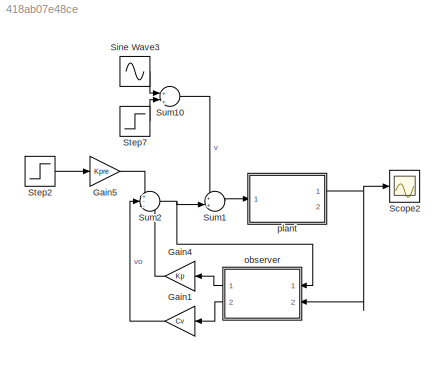
MODEL slx_418ab07e48ce
KIND model
CONFIG AbsTol = auto
CONFIG EnableMultiTasking = off
CONFIG FixedStep = auto
CONFIG MaxStep = auto
CONFIG MinStep = auto
CONFIG RelTol = 1e-3
CONFIG SampleTimeConstraint = Unconstrained
CONFIG Solver = VariableStepAuto
CONFIG SolverName = VariableStepAuto
CONFIG StartTime = 0.0
CONFIG StopTime = 10.0
BLOCK [Gain] Gain1
  Gain = Cv
  Multiplication = Matrix(K*u)
  OutDataTypeStr = Inherit: Inherit via internal rule
  ParamDataTypeStr = Inherit: Inherit via internal rule
  SaturateOnIntegerOverflow = off
BLOCK [Gain] Gain4
  Gain = Kp
  Multiplication = Matrix(K*u)
  OutDataTypeStr = Inherit: Inherit via internal rule
  ParamDataTypeStr = Inherit: Inherit via internal rule
  SaturateOnIntegerOverflow = off
BLOCK [Gain] Gain5
  Gain = Kpre
  Multiplication = Matrix(K*u)
  OutDataTypeStr = Inherit: Inherit via internal rule
  ParamDataTypeStr = Inherit: Inherit via internal rule
  SaturateOnIntegerOverflow = off
BLOCK [Scope] Scope2
  Floating = off
  NumInputPorts = 1
  Ports = [1]
  ScopeSpecificationString = Simulink.scopes.TimeScopeBlockCfg('CurrentConfiguration', extmgr.ConfigurationSet(extmgr.Configuration('Core','General UI',true),extmgr.Configuration('Core','Source UI',true),extmgr.Configuration('Sources','WiredSimulink',true),extmgr.Configuration('Visuals','Time Domain',true,'SerializedDisplays',{struct('MinYLimReal','-2.86993','MaxYLimReal','14.38316','YLabelReal','','MinYLimMag','0.00000','Max...<+1456ch>
BLOCK [Sin] Sine Wave3
  Amplitude = 2
  Frequency = 2*ref
  Ports = [0, 1]
  SampleTime = 0
BLOCK [Step] Step2
  After = ref
  SampleTime = 0
BLOCK [Step] Step7
  After = 2
  SampleTime = 0
  Time = 4
BLOCK [Sum] Sum1
  IconShape = round
  InputSameDT = off
  Inputs = ++|
  OutDataTypeStr = Inherit: Inherit via internal rule
  Ports = [2, 1]
  SaturateOnIntegerOverflow = off
BLOCK [Sum] Sum10
  IconShape = round
  InputSameDT = off
  Inputs = +|+
  OutDataTypeStr = Inherit: Inherit via internal rule
  Ports = [2, 1]
  SaturateOnIntegerOverflow = off
BLOCK [Sum] Sum2
  IconShape = round
  InputSameDT = off
  Inputs = +--
  OutDataTypeStr = Inherit: Inherit via internal rule
  Ports = [3, 1]
  SaturateOnIntegerOverflow = off
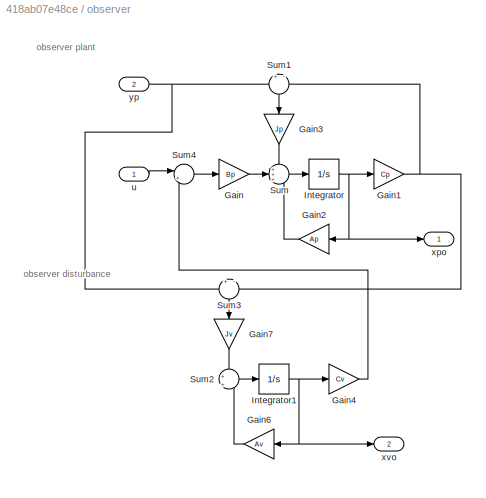
BLOCK [SubSystem] observer
  Ports = [2, 2]
  RequestExecContextInheritance = off
BLOCK [Gain] observer/Gain
  Gain = Bp
  Multiplication = Matrix(K*u)
  OutDataTypeStr = Inherit: Inherit via internal rule
  ParamDataTypeStr = Inherit: Inherit via internal rule
  SaturateOnIntegerOverflow = off
BLOCK [Gain] observer/Gain1
  Gain = Cp
  Multiplication = Matrix(K*u)
  OutDataTypeStr = Inherit: Inherit via internal rule
  ParamDataTypeStr = Inherit: Inherit via internal rule
  SaturateOnIntegerOverflow = off
BLOCK [Gain] observer/Gain2
  Gain = Ap
  Multiplication = Matrix(K*u)
  OutDataTypeStr = Inherit: Inherit via internal rule
  ParamDataTypeStr = Inherit: Inherit via internal rule
  SaturateOnIntegerOverflow = off
BLOCK [Gain] observer/Gain3
  Gain = Jp
  Multiplication = Matrix(K*u)
  OutDataTypeStr = Inherit: Inherit via internal rule
  ParamDataTypeStr = Inherit: Inherit via internal rule
  SaturateOnIntegerOverflow = off
BLOCK [Gain] observer/Gain4
  Gain = Cv
  Multiplication = Matrix(K*u)
  OutDataTypeStr = Inherit: Inherit via internal rule
  ParamDataTypeStr = Inherit: Inherit via internal rule
  SaturateOnIntegerOverflow = off
BLOCK [Gain] observer/Gain6
  Gain = Av
  Multiplication = Matrix(K*u)
  OutDataTypeStr = Inherit: Inherit via internal rule
  ParamDataTypeStr = Inherit: Inherit via internal rule
  SaturateOnIntegerOverflow = off
BLOCK [Gain] observer/Gain7
  Gain = Jv
  Multiplication = Matrix(K*u)
  OutDataTypeStr = Inherit: Inherit via internal rule
  ParamDataTypeStr = Inherit: Inherit via internal rule
  SaturateOnIntegerOverflow = off
BLOCK [Integrator] observer/Integrator
  Ports = [1, 1]
BLOCK [Integrator] observer/Integrator1
  Ports = [1, 1]
BLOCK [Sum] observer/Sum
  IconShape = round
  InputSameDT = off
  Inputs = +++
  OutDataTypeStr = Inherit: Inherit via internal rule
  Ports = [3, 1]
  SaturateOnIntegerOverflow = off
BLOCK [Sum] observer/Sum1
  IconShape = round
  InputSameDT = off
  Inputs = +|-
  OutDataTypeStr = Inherit: Inherit via internal rule
  Ports = [2, 1]
  SaturateOnIntegerOverflow = off
BLOCK [Sum] observer/Sum2
  IconShape = round
  InputSameDT = off
  Inputs = +|+
  OutDataTypeStr = Inherit: Inherit via internal rule
  Ports = [2, 1]
  SaturateOnIntegerOverflow = off
BLOCK [Sum] observer/Sum3
  IconShape = round
  InputSameDT = off
  Inputs = +|-
  OutDataTypeStr = Inherit: Inherit via internal rule
  Ports = [2, 1]
  SaturateOnIntegerOverflow = off
BLOCK [Sum] observer/Sum4
  IconShape = round
  InputSameDT = off
  Inputs = |++
  OutDataTypeStr = Inherit: Inherit via internal rule
  Ports = [2, 1]
  SaturateOnIntegerOverflow = off
BLOCK [Inport] observer/u
  IconDisplay = Port number
BLOCK [Outport] observer/xpo
  IconDisplay = Port number
BLOCK [Outport] observer/xvo
  IconDisplay = Port number
  Port = 2
BLOCK [Inport] observer/yp
  IconDisplay = Port number
  Port = 2
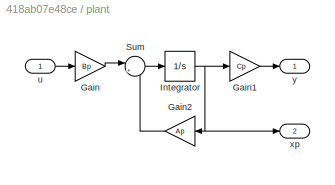
BLOCK [SubSystem] plant
  Ports = [1, 2]
  RequestExecContextInheritance = off
BLOCK [Gain] plant/Gain
  Gain = Bp
  Multiplication = Matrix(K*u)
  OutDataTypeStr = Inherit: Inherit via internal rule
  ParamDataTypeStr = Inherit: Inherit via internal rule
  SaturateOnIntegerOverflow = off
BLOCK [Gain] plant/Gain1
  Gain = Cp
  Multiplication = Matrix(K*u)
  OutDataTypeStr = Inherit: Inherit via internal rule
  ParamDataTypeStr = Inherit: Inherit via internal rule
  SaturateOnIntegerOverflow = off
BLOCK [Gain] plant/Gain2
  Gain = Ap
  Multiplication = Matrix(K*u)
  OutDataTypeStr = Inherit: Inherit via internal rule
  ParamDataTypeStr = Inherit: Inherit via internal rule
  SaturateOnIntegerOverflow = off
BLOCK [Integrator] plant/Integrator
  Ports = [1, 1]
BLOCK [Sum] plant/Sum
  IconShape = round
  InputSameDT = off
  Inputs = |++
  OutDataTypeStr = Inherit: Inherit via internal rule
  Ports = [2, 1]
  SaturateOnIntegerOverflow = off
BLOCK [Inport] plant/u
  IconDisplay = Port number
BLOCK [Outport] plant/xp
  IconDisplay = Port number
  Port = 2
BLOCK [Outport] plant/y
  IconDisplay = Port number
ANNOTATION observer: observer disturbance
ANNOTATION observer: observer plant
LINE Gain1:1 -> Sum2:2
LINE Gain4:1 -> Sum2:3
LINE Gain5:1 -> Sum2:1
LINE Sine Wave3:1 -> Sum10:1
LINE Step2:1 -> Gain5:1
LINE Step7:1 -> Sum10:2
LINE Sum10:1 -> Sum1:1
LINE Sum1:1 -> plant:1
NET Sum2:1 -> Sum1:2, observer:1
NET observer/Gain1:1 -> observer/Sum1:2, observer/Sum3:2
LINE observer/Gain2:1 -> observer/Sum:3
LINE observer/Gain3:1 -> observer/Sum:1
LINE observer/Gain4:1 -> observer/Sum4:2
LINE observer/Gain6:1 -> observer/Sum2:2
LINE observer/Gain7:1 -> observer/Sum2:1
LINE observer/Gain:1 -> observer/Sum:2
NET observer/Integrator1:1 -> observer/Gain4:1, observer/Gain6:1, observer/xvo:1
NET observer/Integrator:1 -> observer/Gain1:1, observer/Gain2:1, observer/xpo:1
LINE observer/Sum1:1 -> observer/Gain3:1
LINE observer/Sum2:1 -> observer/Integrator1:1
LINE observer/Sum3:1 -> observer/Gain7:1
LINE observer/Sum4:1 -> observer/Gain:1
LINE observer/Sum:1 -> observer/Integrator:1
LINE observer/u:1 -> observer/Sum4:1
NET observer/yp:1 -> observer/Sum1:1, observer/Sum3:1
LINE observer:1 -> Gain4:1
LINE observer:2 -> Gain1:1
LINE plant/Gain1:1 -> plant/y:1
LINE plant/Gain2:1 -> plant/Sum:2
LINE plant/Gain:1 -> plant/Sum:1
NET plant/Integrator:1 -> plant/Gain1:1, plant/Gain2:1, plant/xp:1
LINE plant/Sum:1 -> plant/Integrator:1
LINE plant/u:1 -> plant/Gain:1
NET plant:1 -> Scope2:1, observer:2
note: NET lines group one-source signal fan-out (src -> all destinations, sorted); 1:1 wires keep LINE
